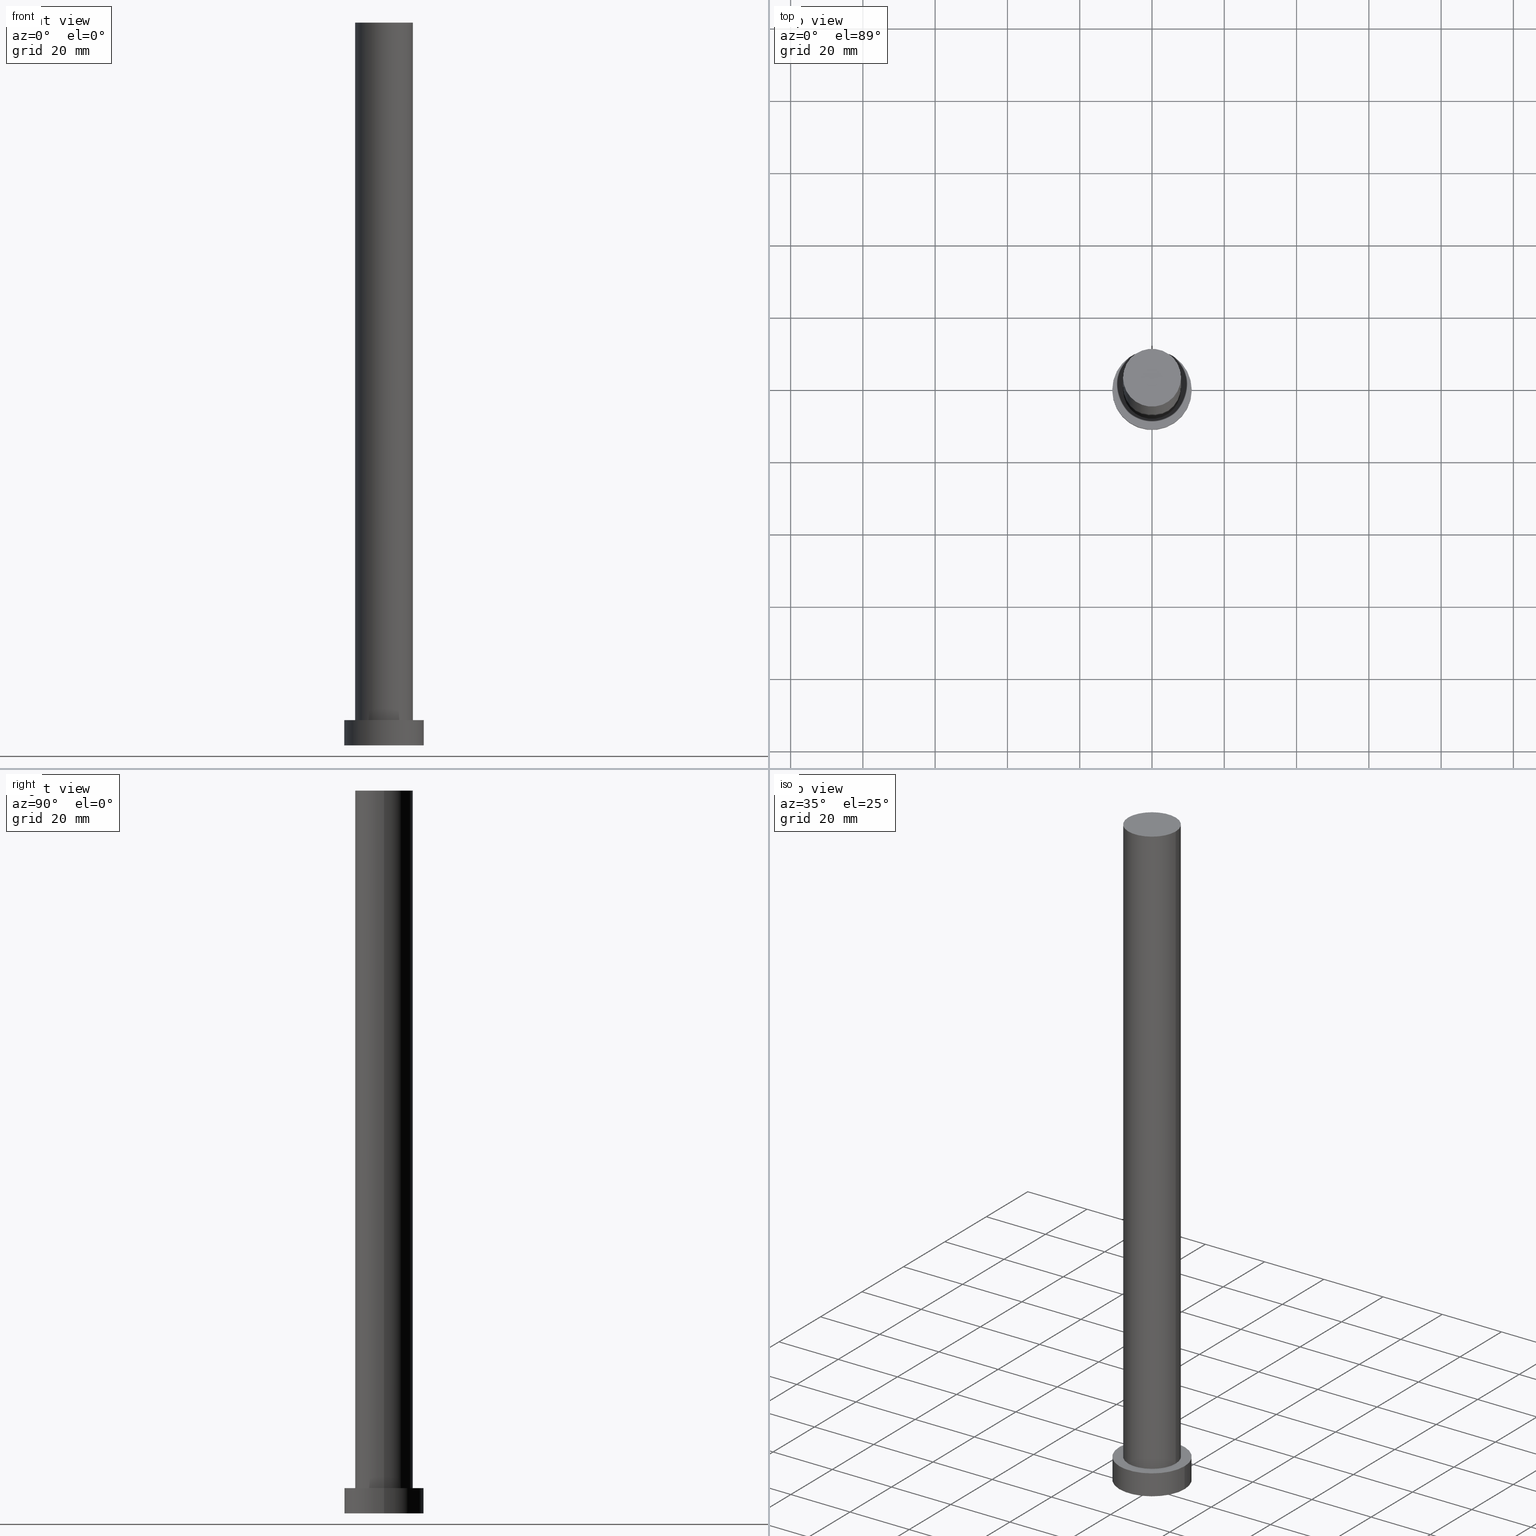
[diagram: canonical four-view strip — front | top / right | iso, engineering-drawing reading convention]
A machine part, canonical four-view strip (front | top / right | iso — engineering-drawing reading convention). The complete STEP part file that produces these views, byte-faithful:
ISO-10303-21;
HEADER;
FILE_DESCRIPTION (( 'STEP AP203' ),
    '1' );
FILE_NAME ('48b1.STEP',
    '2023-02-12T10:39:51',
    ( '' ),
    ( '' ),
    'SwSTEP 2.0',
    'SolidWorks 2019',
    '' );
FILE_SCHEMA (( 'CONFIG_CONTROL_DESIGN' ));
ENDSEC;

DATA;
#1 = CC_DESIGN_PERSON_AND_ORGANIZATION_ASSIGNMENT ( #70, #92, ( #80 ) ) ;
#2 = AXIS2_PLACEMENT_3D ( 'NONE', #199, #49, #193 ) ;
#3 = LOCAL_TIME ( 11, 39, 51.00000000000000000, #201 ) ;
#4 = CALENDAR_DATE ( 2023, 12, 2 ) ;
#5 = AXIS2_PLACEMENT_3D ( 'NONE', #190, #125, #54 ) ;
#6 = CARTESIAN_POINT ( 'NONE',  ( 8.000000000000000000, 9.797174393178825657E-16, 200.0000000000000000 ) ) ;
#7 = CIRCLE ( 'NONE', #41, 8.000000000000000000 ) ;
#8 = MECHANICAL_CONTEXT ( 'NONE', #169, 'mechanical' ) ;
#9 = CC_DESIGN_APPROVAL ( #245, ( #26 ) ) ;
#10 = DIRECTION ( 'NONE',  ( 1.000000000000000000, 0.000000000000000000, 0.000000000000000000 ) ) ;
#11 = DATE_TIME_ROLE ( 'creation_date' ) ;
#12 = VERTEX_POINT ( 'NONE', #142 ) ;
#13 = VERTEX_POINT ( 'NONE', #252 ) ;
#14 = VERTEX_POINT ( 'NONE', #188 ) ;
#15 = DIRECTION ( 'NONE',  ( -0.000000000000000000, -0.000000000000000000, -1.000000000000000000 ) ) ;
#16 = CC_DESIGN_APPROVAL ( #227, ( #198 ) ) ;
#17 = DIRECTION ( 'NONE',  ( 0.000000000000000000, 0.000000000000000000, 1.000000000000000000 ) ) ;
#18 = PLANE ( 'NONE',  #181 ) ;
#19 = DIRECTION ( 'NONE',  ( -0.000000000000000000, -0.000000000000000000, -1.000000000000000000 ) ) ;
#20 = APPLICATION_CONTEXT ( 'configuration controlled 3d designs of mechanical parts and assemblies' ) ;
#21 = DIRECTION ( 'NONE',  ( -1.000000000000000000, 0.000000000000000000, 0.000000000000000000 ) ) ;
#22 = SHAPE_DEFINITION_REPRESENTATION ( #117, #161 ) ;
#23 = PLANE ( 'NONE',  #208 ) ;
#24 = CLOSED_SHELL ( 'NONE', ( #63, #202, #74, #100, #121, #34, #119 ) ) ;
#25 = APPROVAL_ROLE ( '' ) ;
#26 = PRODUCT_DEFINITION ( 'NEZN�M�', '', #198, #191 ) ;
#27 = APPROVAL_PERSON_ORGANIZATION ( #255, #77, #25 ) ;
#28 = MANIFOLD_SOLID_BREP ( 'P�idat vysunut�m3', #24 ) ;
#29 = CARTESIAN_POINT ( 'NONE',  ( 0.000000000000000000, 0.000000000000000000, 200.0000000000000000 ) ) ;
#30 = PERSON_AND_ORGANIZATION ( #215, #159 ) ;
#31 = VECTOR ( 'NONE', #19, 1000.000000000000000 ) ;
#32 = PERSON_AND_ORGANIZATION ( #215, #159 ) ;
#33 = PERSON_AND_ORGANIZATION ( #215, #159 ) ;
#34 = ADVANCED_FACE ( 'NONE', ( #233 ), #55, .T. ) ;
#35 = AXIS2_PLACEMENT_3D ( 'NONE', #136, #171, #46 ) ;
#36 = AXIS2_PLACEMENT_3D ( 'NONE', #66, #174, #179 ) ;
#37 = ORIENTED_EDGE ( 'NONE', *, *, #217, .F. ) ;
#38 = EDGE_LOOP ( 'NONE', ( #57, #106, #210, #248 ) ) ;
#39 = EDGE_CURVE ( 'NONE', #12, #14, #141, .T. ) ;
#40 = CARTESIAN_POINT ( 'NONE',  ( -11.00000000000000000, 0.000000000000000000, 7.000000000000000000 ) ) ;
#41 = AXIS2_PLACEMENT_3D ( 'NONE', #254, #133, #213 ) ;
#42 = FACE_OUTER_BOUND ( 'NONE', #192, .T. ) ;
#43 = FACE_OUTER_BOUND ( 'NONE', #207, .T. ) ;
#44 = CALENDAR_DATE ( 2023, 12, 2 ) ;
#45 = EDGE_CURVE ( 'NONE', #12, #13, #176, .T. ) ;
#46 = DIRECTION ( 'NONE',  ( 1.000000000000000000, 0.000000000000000000, 0.000000000000000000 ) ) ;
#47 = EDGE_CURVE ( 'NONE', #76, #250, #168, .T. ) ;
#48 = CALENDAR_DATE ( 2023, 12, 2 ) ;
#49 = DIRECTION ( 'NONE',  ( -0.000000000000000000, -0.000000000000000000, -1.000000000000000000 ) ) ;
#50 = PERSON_AND_ORGANIZATION ( #215, #159 ) ;
#51 = CARTESIAN_POINT ( 'NONE',  ( 0.000000000000000000, 0.000000000000000000, 0.000000000000000000 ) ) ;
#52 = ORIENTED_EDGE ( 'NONE', *, *, #170, .F. ) ;
#53 = APPROVAL_DATE_TIME ( #246, #227 ) ;
#54 = DIRECTION ( 'NONE',  ( 1.000000000000000000, 0.000000000000000000, 0.000000000000000000 ) ) ;
#55 = CYLINDRICAL_SURFACE ( 'NONE', #223, 8.000000000000000000 ) ;
#56 = CIRCLE ( 'NONE', #187, 8.000000000000000000 ) ;
#57 = ORIENTED_EDGE ( 'NONE', *, *, #247, .F. ) ;
#58 = ORIENTED_EDGE ( 'NONE', *, *, #163, .F. ) ;
#59 = ORIENTED_EDGE ( 'NONE', *, *, #47, .F. ) ;
#60 = DIRECTION ( 'NONE',  ( 0.000000000000000000, 0.000000000000000000, 1.000000000000000000 ) ) ;
#61 = EDGE_LOOP ( 'NONE', ( #212, #59 ) ) ;
#62 = LOCAL_TIME ( 11, 39, 51.00000000000000000, #105 ) ;
#63 = ADVANCED_FACE ( 'NONE', ( #42 ), #189, .T. ) ;
#64 = CARTESIAN_POINT ( 'NONE',  ( 0.000000000000000000, 0.000000000000000000, 7.000000000000000000 ) ) ;
#65 = FACE_BOUND ( 'NONE', #61, .T. ) ;
#66 = CARTESIAN_POINT ( 'NONE',  ( 0.000000000000000000, 0.000000000000000000, 0.000000000000000000 ) ) ;
#67 = EDGE_CURVE ( 'NONE', #250, #76, #7, .T. ) ;
#68 = DIRECTION ( 'NONE',  ( -1.000000000000000000, 0.000000000000000000, 0.000000000000000000 ) ) ;
#69 = EDGE_CURVE ( 'NONE', #165, #14, #137, .T. ) ;
#70 = PERSON_AND_ORGANIZATION ( #215, #159 ) ;
#71 = DIRECTION ( 'NONE',  ( 1.000000000000000000, 0.000000000000000000, 0.000000000000000000 ) ) ;
#72 = AXIS2_PLACEMENT_3D ( 'NONE', #109, #175, #68 ) ;
#73 = APPLICATION_PROTOCOL_DEFINITION ( 'international standard', 'config_control_design', 1994, #20 ) ;
#74 = ADVANCED_FACE ( 'NONE', ( #96 ), #115, .T. ) ;
#75 = PERSON_AND_ORGANIZATION ( #215, #159 ) ;
#76 = VERTEX_POINT ( 'NONE', #219 ) ;
#77 = APPROVAL ( #216, 'NEUR�EN�' ) ;
#78 = VECTOR ( 'NONE', #197, 1000.000000000000000 ) ;
#79 = ORIENTED_EDGE ( 'NONE', *, *, #225, .T. ) ;
#80 = PRODUCT ( '48b1', '48b1', '', ( #8 ) ) ;
#81 = PLANE ( 'NONE',  #99 ) ;
#82 = SECURITY_CLASSIFICATION_LEVEL ( 'unclassified' ) ;
#83 = ORIENTED_EDGE ( 'NONE', *, *, #45, .T. ) ;
#84 = CC_DESIGN_DATE_AND_TIME_ASSIGNMENT ( #104, #11, ( #26 ) ) ;
#85 = CIRCLE ( 'NONE', #36, 11.00000000000000000 ) ;
#86 = DIRECTION ( 'NONE',  ( -0.000000000000000000, -0.000000000000000000, -1.000000000000000000 ) ) ;
#87 = CARTESIAN_POINT ( 'NONE',  ( 8.000000000000000000, 9.797174393178825657E-16, 200.0000000000000000 ) ) ;
#88 = PRODUCT_RELATED_PRODUCT_CATEGORY ( 'detail', '', ( #80 ) ) ;
#89 = CARTESIAN_POINT ( 'NONE',  ( 0.000000000000000000, 0.000000000000000000, 200.0000000000000000 ) ) ;
#90 = APPLICATION_PROTOCOL_DEFINITION ( 'international standard', 'config_control_design', 1994, #169 ) ;
#91 = CC_DESIGN_APPROVAL ( #77, ( #149 ) ) ;
#92 = PERSON_AND_ORGANIZATION_ROLE ( 'design_owner' ) ;
#93 = EDGE_LOOP ( 'NONE', ( #147, #160 ) ) ;
#94 = ORIENTED_EDGE ( 'NONE', *, *, #158, .F. ) ;
#95 = FACE_OUTER_BOUND ( 'NONE', #38, .T. ) ;
#96 = FACE_OUTER_BOUND ( 'NONE', #237, .T. ) ;
#97 =( NAMED_UNIT ( * ) PLANE_ANGLE_UNIT ( ) SI_UNIT ( $, .RADIAN. ) );
#98 = DIRECTION ( 'NONE',  ( 0.000000000000000000, 0.000000000000000000, 1.000000000000000000 ) ) ;
#99 = AXIS2_PLACEMENT_3D ( 'NONE', #146, #60, #128 ) ;
#100 = ADVANCED_FACE ( 'NONE', ( #65, #43 ), #18, .T. ) ;
#101 = VECTOR ( 'NONE', #116, 1000.000000000000000 ) ;
#102 = EDGE_CURVE ( 'NONE', #143, #250, #148, .T. ) ;
#103 = LOCAL_TIME ( 11, 39, 51.00000000000000000, #131 ) ;
#104 = DATE_AND_TIME ( #48, #3 ) ;
#105 = COORDINATED_UNIVERSAL_TIME_OFFSET ( 1, 0, .AHEAD. ) ;
#106 = ORIENTED_EDGE ( 'NONE', *, *, #170, .T. ) ;
#107 = ORIENTED_EDGE ( 'NONE', *, *, #69, .F. ) ;
#108 = ORIENTED_EDGE ( 'NONE', *, *, #217, .T. ) ;
#109 = CARTESIAN_POINT ( 'NONE',  ( 0.000000000000000000, 0.000000000000000000, 200.0000000000000000 ) ) ;
#110 = DIRECTION ( 'NONE',  ( 1.000000000000000000, 0.000000000000000000, -0.000000000000000000 ) ) ;
#111 = CC_DESIGN_PERSON_AND_ORGANIZATION_ASSIGNMENT ( #178, #222, ( #149 ) ) ;
#112 = AXIS2_PLACEMENT_3D ( 'NONE', #234, #17, #209 ) ;
#113 = DIRECTION ( 'NONE',  ( 1.000000000000000000, 0.000000000000000000, -0.000000000000000000 ) ) ;
#114 = CC_DESIGN_SECURITY_CLASSIFICATION ( #149, ( #198 ) ) ;
#115 = CYLINDRICAL_SURFACE ( 'NONE', #139, 11.00000000000000000 ) ;
#116 = DIRECTION ( 'NONE',  ( -0.000000000000000000, -0.000000000000000000, -1.000000000000000000 ) ) ;
#117 = PRODUCT_DEFINITION_SHAPE ( 'NONE', 'NONE',  #26 ) ;
#118 = CARTESIAN_POINT ( 'NONE',  ( -8.000000000000000000, 0.000000000000000000, 200.0000000000000000 ) ) ;
#119 = ADVANCED_FACE ( 'NONE', ( #173 ), #23, .T. ) ;
#120 = DIRECTION ( 'NONE',  ( 1.000000000000000000, 0.000000000000000000, 0.000000000000000000 ) ) ;
#121 = ADVANCED_FACE ( 'NONE', ( #177 ), #81, .F. ) ;
#122 = CYLINDRICAL_SURFACE ( 'NONE', #2, 11.00000000000000000 ) ;
#123 = PERSON_AND_ORGANIZATION_ROLE ( 'creator' ) ;
#124 = APPROVAL_ROLE ( '' ) ;
#125 = DIRECTION ( 'NONE',  ( 0.000000000000000000, 0.000000000000000000, 1.000000000000000000 ) ) ;
#126 = VERTEX_POINT ( 'NONE', #6 ) ;
#127 = ORIENTED_EDGE ( 'NONE', *, *, #247, .T. ) ;
#128 = DIRECTION ( 'NONE',  ( 1.000000000000000000, 0.000000000000000000, -0.000000000000000000 ) ) ;
#129 = ORIENTED_EDGE ( 'NONE', *, *, #47, .T. ) ;
#130 = DIRECTION ( 'NONE',  ( 0.000000000000000000, 0.000000000000000000, 1.000000000000000000 ) ) ;
#131 = COORDINATED_UNIVERSAL_TIME_OFFSET ( 1, 0, .AHEAD. ) ;
#132 = CARTESIAN_POINT ( 'NONE',  ( 0.000000000000000000, 0.000000000000000000, 7.000000000000000000 ) ) ;
#133 = DIRECTION ( 'NONE',  ( 0.000000000000000000, 0.000000000000000000, 1.000000000000000000 ) ) ;
#134 = DATE_TIME_ROLE ( 'classification_date' ) ;
#135 = AXIS2_PLACEMENT_3D ( 'NONE', #132, #172, #120 ) ;
#136 = CARTESIAN_POINT ( 'NONE',  ( 0.000000000000000000, 0.000000000000000000, 0.000000000000000000 ) ) ;
#137 = CIRCLE ( 'NONE', #35, 11.00000000000000000 ) ;
#138 = APPROVAL_STATUS ( 'not_yet_approved' ) ;
#139 = AXIS2_PLACEMENT_3D ( 'NONE', #64, #86, #21 ) ;
#140 = DIRECTION ( 'NONE',  ( 1.000000000000000000, 0.000000000000000000, 0.000000000000000000 ) ) ;
#141 = LINE ( 'NONE', #40, #151 ) ;
#142 = CARTESIAN_POINT ( 'NONE',  ( -11.00000000000000000, 0.000000000000000000, 7.000000000000000000 ) ) ;
#143 = VERTEX_POINT ( 'NONE', #118 ) ;
#144 = CARTESIAN_POINT ( 'NONE',  ( 0.000000000000000000, 0.000000000000000000, 200.0000000000000000 ) ) ;
#145 = CARTESIAN_POINT ( 'NONE',  ( 11.00000000000000000, 1.347111479062088405E-15, 7.000000000000000000 ) ) ;
#146 = CARTESIAN_POINT ( 'NONE',  ( 0.000000000000000000, 0.000000000000000000, 0.000000000000000000 ) ) ;
#147 = ORIENTED_EDGE ( 'NONE', *, *, #158, .T. ) ;
#148 = LINE ( 'NONE', #167, #101 ) ;
#149 = SECURITY_CLASSIFICATION ( '', '', #82 ) ;
#150 =( LENGTH_UNIT ( ) NAMED_UNIT ( * ) SI_UNIT ( .MILLI., .METRE. ) );
#151 = VECTOR ( 'NONE', #206, 1000.000000000000000 ) ;
#152 = COORDINATED_UNIVERSAL_TIME_OFFSET ( 1, 0, .AHEAD. ) ;
#153 =( GEOMETRIC_REPRESENTATION_CONTEXT ( 3 ) GLOBAL_UNCERTAINTY_ASSIGNED_CONTEXT ( ( #186 ) ) GLOBAL_UNIT_ASSIGNED_CONTEXT ( ( #150, #97, #226 ) ) REPRESENTATION_CONTEXT ( 'NONE', 'WORKASPACE' ) );
#154 = PERSON_AND_ORGANIZATION_ROLE ( 'creator' ) ;
#155 = DATE_AND_TIME ( #232, #242 ) ;
#156 = LINE ( 'NONE', #145, #31 ) ;
#157 = CALENDAR_DATE ( 2023, 12, 2 ) ;
#158 = EDGE_CURVE ( 'NONE', #143, #126, #56, .T. ) ;
#159 = ORGANIZATION ( 'NEUR�EN�', 'NEUR�EN�', '' ) ;
#160 = ORIENTED_EDGE ( 'NONE', *, *, #163, .T. ) ;
#161 = ADVANCED_BREP_SHAPE_REPRESENTATION ( '48b1', ( #28, #228 ), #153 ) ;
#162 = CARTESIAN_POINT ( 'NONE',  ( 11.00000000000000000, 1.347111479062088405E-15, 0.000000000000000000 ) ) ;
#163 = EDGE_CURVE ( 'NONE', #126, #143, #183, .T. ) ;
#164 = ORIENTED_EDGE ( 'NONE', *, *, #102, .T. ) ;
#165 = VERTEX_POINT ( 'NONE', #162 ) ;
#166 = ORIENTED_EDGE ( 'NONE', *, *, #67, .T. ) ;
#167 = CARTESIAN_POINT ( 'NONE',  ( -8.000000000000000000, 0.000000000000000000, 200.0000000000000000 ) ) ;
#168 = CIRCLE ( 'NONE', #112, 8.000000000000000000 ) ;
#169 = APPLICATION_CONTEXT ( 'configuration controlled 3d designs of mechanical parts and assemblies' ) ;
#170 = EDGE_CURVE ( 'NONE', #13, #165, #156, .T. ) ;
#171 = DIRECTION ( 'NONE',  ( 0.000000000000000000, 0.000000000000000000, 1.000000000000000000 ) ) ;
#172 = DIRECTION ( 'NONE',  ( 0.000000000000000000, 0.000000000000000000, 1.000000000000000000 ) ) ;
#173 = FACE_OUTER_BOUND ( 'NONE', #93, .T. ) ;
#174 = DIRECTION ( 'NONE',  ( 0.000000000000000000, 0.000000000000000000, 1.000000000000000000 ) ) ;
#175 = DIRECTION ( 'NONE',  ( -0.000000000000000000, -0.000000000000000000, -1.000000000000000000 ) ) ;
#176 = CIRCLE ( 'NONE', #5, 11.00000000000000000 ) ;
#177 = FACE_OUTER_BOUND ( 'NONE', #221, .T. ) ;
#178 = PERSON_AND_ORGANIZATION ( #215, #159 ) ;
#179 = DIRECTION ( 'NONE',  ( 1.000000000000000000, 0.000000000000000000, 0.000000000000000000 ) ) ;
#180 = LOCAL_TIME ( 11, 39, 51.00000000000000000, #152 ) ;
#181 = AXIS2_PLACEMENT_3D ( 'NONE', #240, #98, #113 ) ;
#182 = COORDINATED_UNIVERSAL_TIME_OFFSET ( 1, 0, .AHEAD. ) ;
#183 = CIRCLE ( 'NONE', #229, 8.000000000000000000 ) ;
#184 = DIRECTION ( 'NONE',  ( 0.000000000000000000, 0.000000000000000000, 1.000000000000000000 ) ) ;
#185 = APPROVAL_DATE_TIME ( #155, #245 ) ;
#186 = UNCERTAINTY_MEASURE_WITH_UNIT (LENGTH_MEASURE( 1.000000000000000082E-05 ), #150, 'distance_accuracy_value', 'NONE');
#187 = AXIS2_PLACEMENT_3D ( 'NONE', #89, #224, #71 ) ;
#188 = CARTESIAN_POINT ( 'NONE',  ( -11.00000000000000000, 0.000000000000000000, 0.000000000000000000 ) ) ;
#189 = CYLINDRICAL_SURFACE ( 'NONE', #72, 8.000000000000000000 ) ;
#190 = CARTESIAN_POINT ( 'NONE',  ( 0.000000000000000000, 0.000000000000000000, 7.000000000000000000 ) ) ;
#191 = DESIGN_CONTEXT ( 'detailed design', #20, 'design' ) ;
#192 = EDGE_LOOP ( 'NONE', ( #58, #108, #129, #249 ) ) ;
#193 = DIRECTION ( 'NONE',  ( -1.000000000000000000, 0.000000000000000000, 0.000000000000000000 ) ) ;
#194 = CC_DESIGN_DATE_AND_TIME_ASSIGNMENT ( #214, #134, ( #149 ) ) ;
#195 = CARTESIAN_POINT ( 'NONE',  ( 0.000000000000000000, 0.000000000000000000, 200.0000000000000000 ) ) ;
#196 = APPROVAL_DATE_TIME ( #220, #77 ) ;
#197 = DIRECTION ( 'NONE',  ( -0.000000000000000000, -0.000000000000000000, -1.000000000000000000 ) ) ;
#198 = PRODUCT_DEFINITION_FORMATION_WITH_SPECIFIED_SOURCE ( 'LIBOVOLN�', '', #80, .NOT_KNOWN. ) ;
#199 = CARTESIAN_POINT ( 'NONE',  ( 0.000000000000000000, 0.000000000000000000, 7.000000000000000000 ) ) ;
#200 = APPROVAL_ROLE ( '' ) ;
#201 = COORDINATED_UNIVERSAL_TIME_OFFSET ( 1, 0, .AHEAD. ) ;
#202 = ADVANCED_FACE ( 'NONE', ( #95 ), #122, .T. ) ;
#203 = DIRECTION ( 'NONE',  ( -1.000000000000000000, 0.000000000000000000, 0.000000000000000000 ) ) ;
#204 = CC_DESIGN_PERSON_AND_ORGANIZATION_ASSIGNMENT ( #75, #154, ( #198 ) ) ;
#205 = ORIENTED_EDGE ( 'NONE', *, *, #45, .F. ) ;
#206 = DIRECTION ( 'NONE',  ( -0.000000000000000000, -0.000000000000000000, -1.000000000000000000 ) ) ;
#207 = EDGE_LOOP ( 'NONE', ( #83, #127 ) ) ;
#208 = AXIS2_PLACEMENT_3D ( 'NONE', #195, #130, #110 ) ;
#209 = DIRECTION ( 'NONE',  ( 1.000000000000000000, 0.000000000000000000, 0.000000000000000000 ) ) ;
#210 = ORIENTED_EDGE ( 'NONE', *, *, #69, .T. ) ;
#211 = APPROVAL_PERSON_ORGANIZATION ( #32, #227, #200 ) ;
#212 = ORIENTED_EDGE ( 'NONE', *, *, #67, .F. ) ;
#213 = DIRECTION ( 'NONE',  ( 1.000000000000000000, 0.000000000000000000, 0.000000000000000000 ) ) ;
#214 = DATE_AND_TIME ( #4, #103 ) ;
#215 = PERSON ( 'NEUR�EN�', 'NEUR�EN�', 'NEUR�EN�', ('NEUR�EN�'), ('NEUR�EN�'), ('NEUR�EN�') ) ;
#216 = APPROVAL_STATUS ( 'not_yet_approved' ) ;
#217 = EDGE_CURVE ( 'NONE', #126, #76, #241, .T. ) ;
#218 = CIRCLE ( 'NONE', #135, 11.00000000000000000 ) ;
#219 = CARTESIAN_POINT ( 'NONE',  ( 8.000000000000000000, 9.797174393178825657E-16, 7.000000000000000000 ) ) ;
#220 = DATE_AND_TIME ( #44, #180 ) ;
#221 = EDGE_LOOP ( 'NONE', ( #253, #107 ) ) ;
#222 = PERSON_AND_ORGANIZATION_ROLE ( 'classification_officer' ) ;
#223 = AXIS2_PLACEMENT_3D ( 'NONE', #144, #15, #203 ) ;
#224 = DIRECTION ( 'NONE',  ( 0.000000000000000000, 0.000000000000000000, 1.000000000000000000 ) ) ;
#225 = EDGE_CURVE ( 'NONE', #14, #165, #85, .T. ) ;
#226 =( NAMED_UNIT ( * ) SI_UNIT ( $, .STERADIAN. ) SOLID_ANGLE_UNIT ( ) );
#227 = APPROVAL ( #138, 'NEUR�EN�' ) ;
#228 = AXIS2_PLACEMENT_3D ( 'NONE', #51, #244, #140 ) ;
#229 = AXIS2_PLACEMENT_3D ( 'NONE', #29, #184, #10 ) ;
#230 = APPROVAL_PERSON_ORGANIZATION ( #30, #245, #124 ) ;
#231 = EDGE_LOOP ( 'NONE', ( #37, #94, #164, #166 ) ) ;
#232 = CALENDAR_DATE ( 2023, 12, 2 ) ;
#233 = FACE_OUTER_BOUND ( 'NONE', #231, .T. ) ;
#234 = CARTESIAN_POINT ( 'NONE',  ( 0.000000000000000000, 0.000000000000000000, 7.000000000000000000 ) ) ;
#235 = PERSON_AND_ORGANIZATION_ROLE ( 'design_supplier' ) ;
#236 = ORIENTED_EDGE ( 'NONE', *, *, #39, .T. ) ;
#237 = EDGE_LOOP ( 'NONE', ( #52, #205, #236, #79 ) ) ;
#238 = CC_DESIGN_PERSON_AND_ORGANIZATION_ASSIGNMENT ( #33, #235, ( #198 ) ) ;
#239 = CARTESIAN_POINT ( 'NONE',  ( -8.000000000000000000, 0.000000000000000000, 7.000000000000000000 ) ) ;
#240 = CARTESIAN_POINT ( 'NONE',  ( 0.000000000000000000, 0.000000000000000000, 7.000000000000000000 ) ) ;
#241 = LINE ( 'NONE', #87, #78 ) ;
#242 = LOCAL_TIME ( 11, 39, 51.00000000000000000, #182 ) ;
#243 = APPROVAL_STATUS ( 'not_yet_approved' ) ;
#244 = DIRECTION ( 'NONE',  ( 0.000000000000000000, 0.000000000000000000, 1.000000000000000000 ) ) ;
#245 = APPROVAL ( #243, 'NEUR�EN�' ) ;
#246 = DATE_AND_TIME ( #157, #62 ) ;
#247 = EDGE_CURVE ( 'NONE', #13, #12, #218, .T. ) ;
#248 = ORIENTED_EDGE ( 'NONE', *, *, #39, .F. ) ;
#249 = ORIENTED_EDGE ( 'NONE', *, *, #102, .F. ) ;
#250 = VERTEX_POINT ( 'NONE', #239 ) ;
#251 = CC_DESIGN_PERSON_AND_ORGANIZATION_ASSIGNMENT ( #50, #123, ( #26 ) ) ;
#252 = CARTESIAN_POINT ( 'NONE',  ( 11.00000000000000000, 1.347111479062088405E-15, 7.000000000000000000 ) ) ;
#253 = ORIENTED_EDGE ( 'NONE', *, *, #225, .F. ) ;
#254 = CARTESIAN_POINT ( 'NONE',  ( 0.000000000000000000, 0.000000000000000000, 7.000000000000000000 ) ) ;
#255 = PERSON_AND_ORGANIZATION ( #215, #159 ) ;
ENDSEC;
END-ISO-10303-21;
